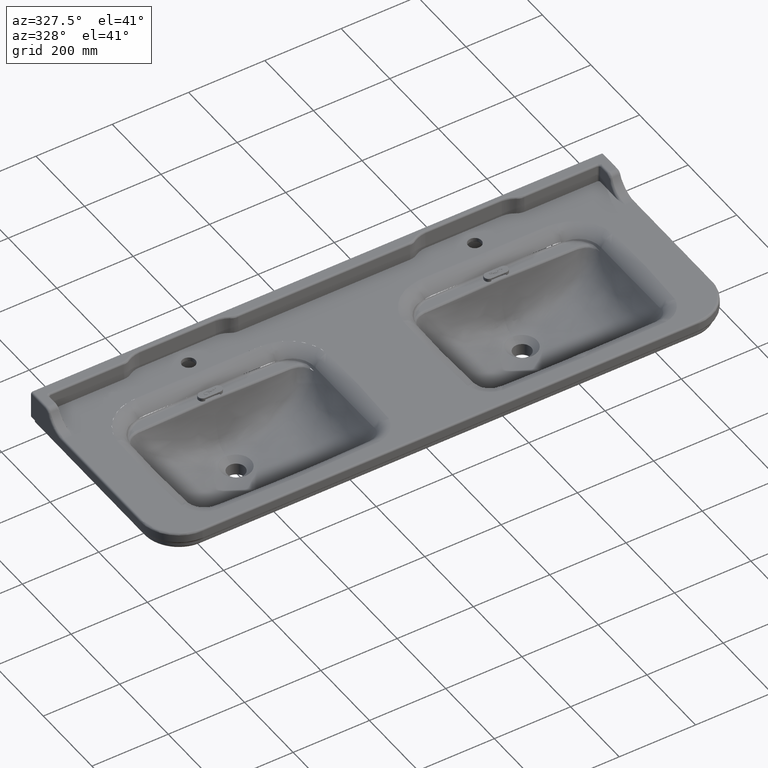
[diagram: clean part render]
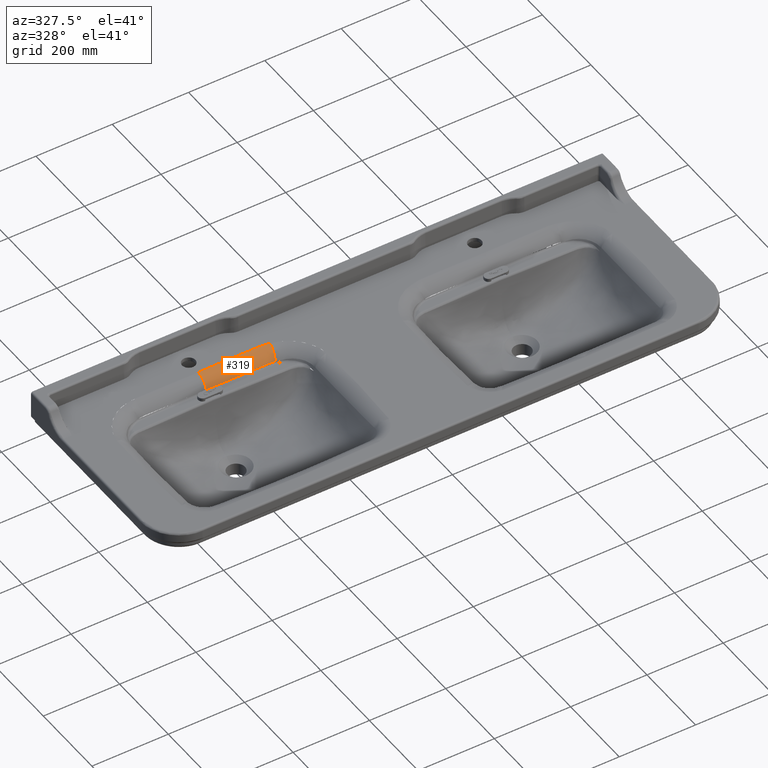
[diagram: same view with one face highlighted and labeled with its STEP entity id]
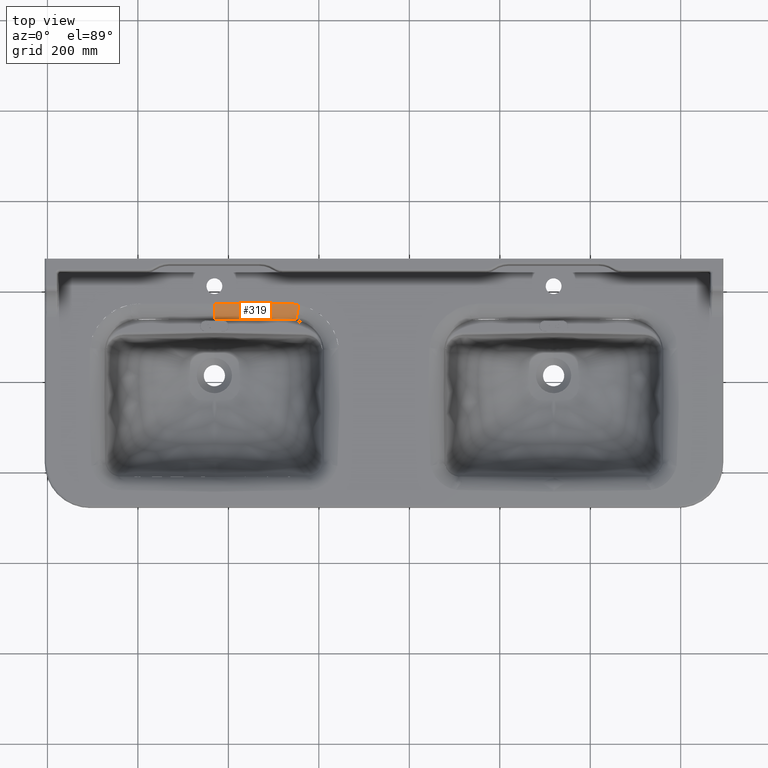
[diagram: same view with one face highlighted and labeled with its STEP entity id]
A machine part, auxiliary view. The second image highlights one B-rep face of the part: STEP entity #319.
A second angle (top view) of the same face is appended — the face is thin or edge-on in the first view.
In plain terms, the highlighted face is a freeform B-spline surface patch.
Its self-contained STEP definition (entity closure, byte-faithful):
#319=ADVANCED_FACE($,(#964),#8271,.T.);
#964=FACE_OUTER_BOUND($,#1613,.T.);
#1613=EDGE_LOOP($,(#3208,#3209,#3210,#3211));
#3208=ORIENTED_EDGE($,*,*,#6012,.T.);
#3209=ORIENTED_EDGE($,*,*,#6014,.T.);
#3210=ORIENTED_EDGE($,*,*,#6011,.T.);
#3211=ORIENTED_EDGE($,*,*,#6013,.T.);
#6011=EDGE_CURVE($,#7401,#6993,#9495,.T.);
#6012=EDGE_CURVE($,#6991,#7402,#8988,.T.);
#6013=EDGE_CURVE($,#6993,#6991,#9496,.T.);
#6014=EDGE_CURVE($,#7402,#7401,#9497,.T.);
#6991=VERTEX_POINT($,#247959);
#6993=VERTEX_POINT($,#247961);
#7401=VERTEX_POINT($,#248369);
#7402=VERTEX_POINT($,#248370);
#8271=(
BOUNDED_SURFACE()
B_SPLINE_SURFACE(3,2,((#142724,#142725,#142726),(#142727,#142728,#142729),
(#142730,#142731,#142732),(#142733,#142734,#142735),(#142736,#142737,#142738),
(#142739,#142740,#142741),(#142742,#142743,#142744),(#142745,#142746,#142747),
(#142748,#142749,#142750),(#142751,#142752,#142753),(#142754,#142755,#142756),
(#142757,#142758,#142759),(#142760,#142761,#142762),(#142763,#142764,#142765),
(#142766,#142767,#142768),(#142769,#142770,#142771),(#142772,#142773,#142774),
(#142775,#142776,#142777),(#142778,#142779,#142780),(#142781,#142782,#142783),
(#142784,#142785,#142786),(#142787,#142788,#142789),(#142790,#142791,#142792),
(#142793,#142794,#142795),(#142796,#142797,#142798),(#142799,#142800,#142801),
(#142802,#142803,#142804),(#142805,#142806,#142807),(#142808,#142809,#142810),
(#142811,#142812,#142813),(#142814,#142815,#142816),(#142817,#142818,#142819),
(#142820,#142821,#142822),(#142823,#142824,#142825),(#142826,#142827,#142828),
(#142829,#142830,#142831),(#142832,#142833,#142834),(#142835,#142836,#142837),
(#142838,#142839,#142840),(#142841,#142842,#142843),(#142844,#142845,#142846),
(#142847,#142848,#142849),(#142850,#142851,#142852),(#142853,#142854,#142855),
(#142856,#142857,#142858),(#142859,#142860,#142861),(#142862,#142863,#142864),
(#142865,#142866,#142867),(#142868,#142869,#142870),(#142871,#142872,#142873),
(#142874,#142875,#142876),(#142877,#142878,#142879)),.UNSPECIFIED.,.F.,.F.,
.F.)
B_SPLINE_SURFACE_WITH_KNOTS((4,2,2,2,2,2,2,2,2,2,2,2,2,2,2,2,2,2,2,2,2,2,
2,2,2,4),(3,3),(0.361759218,0.454869129498658,0.501986117063007,0.513765363954094,
0.519654987399638,0.52259979912241,0.524072204983796,0.524440306449142,0.524532331815479,
0.524578344498647,0.524601350840231,0.524612854011023,0.524618605596419,
0.524624357181815,0.524808407914489,0.525544610845182,0.528489422567953,
0.531434234290725,0.534379046013497,0.537323857736269,0.538060060666962,
0.538428162132308,0.538796263597655,0.540268669459041,0.543213481181812,
0.549103104627356),(0.041557294,1.),.UNSPECIFIED.)
GEOMETRIC_REPRESENTATION_ITEM()
RATIONAL_B_SPLINE_SURFACE(((0.979538770226055,0.753819031456368,1.),(0.979539853531856,
0.753832065339201,1.),(0.979540938035703,0.753845113636404,1.),(0.979542573191237,
0.753864787144669,1.),(0.979543122914151,0.753871401181114,1.),(0.97954381047025,
0.753879673568857,1.),(0.979543947999807,0.753881328267041,1.),(0.979544154322685,
0.7538838106577,1.),(0.979544223101805,0.753884638179344,1.),(0.979544326279496,
0.753885879570205,1.),(0.979544360672708,0.753886293374978,1.),(0.979544412264399,
0.753886914104643,1.),(0.979544429462011,0.753887121019133,1.),(0.979544450959534,
0.753887379668342,1.),(0.979544455259044,0.753887431398254,1.),(0.979544460633402,
0.753887496060279,1.),(0.97954446170829,0.753887508992892,1.),(0.979544463320613,
0.75388752839168,1.),(0.979544463858053,0.75388753485794,1.),(0.979544464664219,
0.753887544557389,1.),(0.979544464932934,0.753887547790454,1.),(0.979544465336023,
0.753887552640245,1.),(0.979544450051883,0.753887368747864,1.),(0.979544473381172,
0.753887649436128,1.),(0.979544636040357,0.753889606483481,1.),(0.97954485575644,
0.753892250015615,1.),(0.979544965641972,0.753893572112426,1.),(0.979548592771671,
0.753937212221653,1.),(0.979552138137032,0.753979868576527,1.),(0.979570005565516,
0.754194842011563,1.),(0.979584749425528,0.754372233975677,1.),(0.979660709433766,
0.755286153060952,1.),(0.979728534018128,0.756102190124887,1.),(0.979877835764551,
0.757898526363997,1.),(0.979959325110974,0.758878972136327,1.),(0.980135640802764,
0.761000328880453,1.),(0.980230467374203,0.762141242572279,1.),(0.980433158446307,
0.764579936873507,1.),(0.980541073643971,0.765878327448024,1.),(0.980683537720091,
0.767592395694619,1.),(0.980712426038544,0.767939967873556,1.),(0.980756348750129,
0.768468427589739,1.),(0.980771107710748,0.76864600123805,1.),(0.980800744484055,
0.769002578513104,1.),(0.980815532166823,0.769180497734327,1.),(0.980889317388899,
0.770068250701053,1.),(0.98094785536212,0.770772555139416,1.),(0.981122011021057,
0.772867923270674,1.),(0.981236170566461,0.774241443228482,1.),(0.981572911000245,
0.778292963447585,1.),(0.981789754658985,0.780901935758672,1.),(0.98199917997164,
0.783421653628833,1.)))
REPRESENTATION_ITEM($)
SURFACE()
);
#8988=(
BOUNDED_CURVE()
B_SPLINE_CURVE(2,(#20475,#20476,#20477),.UNSPECIFIED.,.F.,.F.)
B_SPLINE_CURVE_WITH_KNOTS((3,3),(0.,1.31811607165057),.UNSPECIFIED.)
CURVE()
GEOMETRIC_REPRESENTATION_ITEM()
RATIONAL_B_SPLINE_CURVE((1.,0.790569415046225,1.))
REPRESENTATION_ITEM($)
);
#9495=B_SPLINE_CURVE_WITH_KNOTS($,3,(#20463,#20464,#20465,#20466,#20467,
#20468,#20469,#20470,#20471,#20472,#20473,#20474),.UNSPECIFIED.,.F.,.F.,
(4,2,2,2,2,4),(2.31811607165057,2.56811607165057,2.81811607165057,3.06811607165057,
3.19311607165057,3.31811607165057),.UNSPECIFIED.);
#9496=B_SPLINE_CURVE_WITH_KNOTS($,3,(#20478,#20479,#20480,#20481,#20482,
#20483,#20484,#20485,#20486,#20487,#20488,#20489),.UNSPECIFIED.,.F.,.F.,
(4,1,1,2,2,2,4),(3.31811607165057,3.81811607165057,4.06811607165057,4.19311607165057,
4.22436607165057,4.25561607165057,4.31811607165057),.UNSPECIFIED.);
#9497=B_SPLINE_CURVE_WITH_KNOTS($,3,(#20490,#20491,#20492,#20493,#20494,
#20495,#20496,#20497,#20498,#20499,#20500),.UNSPECIFIED.,.F.,.F.,(4,2,2,
1,1,1,4),(1.31811607165057,1.44311607164999,1.47436607165001,1.50561607165003,
1.56811607165008,1.81811607165024,2.31811607165057),.UNSPECIFIED.);
#20463=CARTESIAN_POINT($,(-30.9148483423476,170.665895927924,204.999999999963));
#20464=CARTESIAN_POINT($,(-30.9148483423476,166.783858104924,204.999999999963));
#20465=CARTESIAN_POINT($,(-30.9148483423476,163.008854141924,204.371508822963));
#20466=CARTESIAN_POINT($,(-30.9148483423476,155.672076903924,201.862459081963));
#20467=CARTESIAN_POINT($,(-30.9148483423476,152.294643684924,200.041483586963));
#20468=CARTESIAN_POINT($,(-30.9148483423476,146.172126751924,195.299188062963));
#20469=CARTESIAN_POINT($,(-30.9148483423476,143.559148558924,192.476268550963));
#20470=CARTESIAN_POINT($,(-30.9148483423476,140.369054183924,187.630682928963));
#20471=CARTESIAN_POINT($,(-30.9148483423476,139.442402627924,185.929768494963));
#20472=CARTESIAN_POINT($,(-30.9148483423476,137.891405945924,182.429676769963));
#20473=CARTESIAN_POINT($,(-30.9148483423476,137.260205139924,180.620315905963));
#20474=CARTESIAN_POINT($,(-30.9148483423476,136.777291648924,178.749999999963));
#20475=CARTESIAN_POINT($,(149.169515619653,134.977591769049,178.749999999954));
#20476=CARTESIAN_POINT($,(150.541674492329,141.614961732534,204.999999999766));
#20477=CARTESIAN_POINT($,(156.030309983669,168.164441585017,204.999999999797));
#20478=CARTESIAN_POINT($,(-30.9148483423476,136.777291648924,178.749999999963));
#20479=CARTESIAN_POINT($,(-0.882849974347556,136.777238409945,178.749999999962));
#20480=CARTESIAN_POINT($,(44.1651475786525,136.777158582976,178.749999999959));
#20481=CARTESIAN_POINT($,(96.7211447226526,136.777065508013,178.749999999957));
#20482=CARTESIAN_POINT($,(119.245143498653,136.777025631028,178.749999999955));
#20483=CARTESIAN_POINT($,(128.630142988653,136.777009018035,178.749999999955));
#20484=CARTESIAN_POINT($,(130.507705610653,136.786413748036,178.749999999955));
#20485=CARTESIAN_POINT($,(134.260428645653,136.765061205039,178.749999999955));
#20486=CARTESIAN_POINT($,(136.132747055653,136.68678907104,178.749999999955));
#20487=CARTESIAN_POINT($,(141.738481417653,136.264373293044,178.749999999954));
#20488=CARTESIAN_POINT($,(145.461367667653,135.744185788046,178.749999999954));
#20489=CARTESIAN_POINT($,(149.169515619653,134.977591769049,178.749999999954));
#20490=CARTESIAN_POINT($,(156.030309983669,168.164441585017,204.999999999797));
#20491=CARTESIAN_POINT($,(148.39376486669,169.743162252936,204.999999999955));
#20492=CARTESIAN_POINT($,(140.677599995726,170.596376825928,204.999999999956));
#20493=CARTESIAN_POINT($,(130.92803454776,170.678001238927,204.999999999956));
#20494=CARTESIAN_POINT($,(128.978119432759,170.665612680927,204.999999999956));
#20495=CARTESIAN_POINT($,(125.078290949756,170.665619584927,204.999999999956));
#20496=CARTESIAN_POINT($,(119.228548226752,170.665629939927,204.999999999957));
#20497=CARTESIAN_POINT($,(97.7794915737381,170.665667913926,204.999999999958));
#20498=CARTESIAN_POINT($,(47.0817213037044,170.665757694926,204.99999999996));
#20499=CARTESIAN_POINT($,(0.283779515673167,170.665840620925,204.999999999962));
#20500=CARTESIAN_POINT($,(-30.9148483423476,170.665895927924,204.999999999963));
#142724=CARTESIAN_POINT($,(-30.9149092788713,136.118082980928,175.607906967581));
#142725=CARTESIAN_POINT($,(-30.9149008206754,140.889097678845,204.999999999515));
#142726=CARTESIAN_POINT($,(-30.9148480342705,170.66589592823,204.999999999963));
#142727=CARTESIAN_POINT($,(0.121693581748511,136.118248614783,175.609266309272));
#142728=CARTESIAN_POINT($,(0.121199734197179,140.890229604105,204.999999987516));
#142729=CARTESIAN_POINT($,(0.121789132966825,170.665840908007,204.999999999963));
#142730=CARTESIAN_POINT($,(31.1583306855878,136.118414602827,175.610627207045));
#142731=CARTESIAN_POINT($,(31.1578357213375,140.891362853487,205.000000005843));
#142732=CARTESIAN_POINT($,(31.1584262973452,170.665785910258,204.999999999963));
#142733=CARTESIAN_POINT($,(77.9006559940503,136.118665131559,175.612679114973));
#142734=CARTESIAN_POINT($,(77.9005355405574,140.893071625812,204.999999996988));
#142735=CARTESIAN_POINT($,(77.9007259866524,170.665703117924,204.999999999963));
#142736=CARTESIAN_POINT($,(93.6063185126455,136.118749401517,175.613368965041));
#142737=CARTESIAN_POINT($,(93.6061979137559,140.893646109306,205.000000004922));
#142738=CARTESIAN_POINT($,(93.6063885066524,170.665675304924,204.999999999963));
#142739=CARTESIAN_POINT($,(113.238404944961,136.118854854276,175.614231777254));
#142740=CARTESIAN_POINT($,(113.238405334133,140.894364659379,204.999999998972));
#142741=CARTESIAN_POINT($,(113.238466659652,170.665640544924,204.999999999963));
#142742=CARTESIAN_POINT($,(117.164820576942,136.118875950389,175.614404362933));
#142743=CARTESIAN_POINT($,(117.164820964132,140.894508388793,204.99999999798));
#142744=CARTESIAN_POINT($,(117.164882289652,170.665633593924,204.999999999963));
#142745=CARTESIAN_POINT($,(123.05444443902,136.118907604296,175.614663283204));
#142746=CARTESIAN_POINT($,(123.054450876716,140.894724014559,205.000000000955));
#142747=CARTESIAN_POINT($,(123.054505734652,170.665623167924,204.999999999963));
#142748=CARTESIAN_POINT($,(125.01765225502,136.118918155975,175.614749594921));
#142749=CARTESIAN_POINT($,(125.017658692715,140.894795894091,205.000000000955));
#142750=CARTESIAN_POINT($,(125.017713550652,170.665619691924,204.999999999963));
#142751=CARTESIAN_POINT($,(127.962464083535,136.118933987082,175.614879073418));
#142752=CARTESIAN_POINT($,(127.962472033346,140.894903725268,204.999999999963));
#142753=CARTESIAN_POINT($,(127.962525272652,170.665614478924,204.999999999963));
#142754=CARTESIAN_POINT($,(128.944067991535,136.118939264449,175.614922234243));
#142755=CARTESIAN_POINT($,(128.944075941346,140.89493966899,204.999999999963));
#142756=CARTESIAN_POINT($,(128.944129180652,170.665612740924,204.999999999963));
#142757=CARTESIAN_POINT($,(130.416473879173,136.118947181029,175.614986977963));
#142758=CARTESIAN_POINT($,(130.416482207996,140.894993588045,204.999999999963));
#142759=CARTESIAN_POINT($,(130.416535041652,170.665610134924,204.999999999963));
#142760=CARTESIAN_POINT($,(130.907275834163,136.118949820213,175.615008558874));
#142761=CARTESIAN_POINT($,(130.907284161996,140.895011560398,204.999999999963));
#142762=CARTESIAN_POINT($,(130.907336995652,170.665609265924,204.999999999963));
#142763=CARTESIAN_POINT($,(131.520778284304,136.118953119214,175.615035536501));
#142764=CARTESIAN_POINT($,(131.520786730947,140.895034027824,204.999999999963));
#142765=CARTESIAN_POINT($,(131.520839437652,170.665608179924,204.999999999963));
#142766=CARTESIAN_POINT($,(131.643478773304,136.11895377901,175.615040932225));
#142767=CARTESIAN_POINT($,(131.643487219947,140.895038520914,204.999999999963));
#142768=CARTESIAN_POINT($,(131.643539926652,170.665607962924,204.999999999963));
#142769=CARTESIAN_POINT($,(131.79685438437,136.118954603762,175.615047676631));
#142770=CARTESIAN_POINT($,(131.796862837881,140.895044138014,204.999999999963));
#142771=CARTESIAN_POINT($,(131.796915536652,170.665607690924,204.999999999963));
#142772=CARTESIAN_POINT($,(131.82752950637,136.118954768709,175.615049025315));
#142773=CARTESIAN_POINT($,(131.827537959889,140.89504526104,204.999999999963));
#142774=CARTESIAN_POINT($,(131.827590659652,170.665607636924,204.999999999963));
#142775=CARTESIAN_POINT($,(131.873542189379,136.118955015638,175.615051048835));
#142776=CARTESIAN_POINT($,(131.873550643881,140.895046946076,204.999999999963));
#142777=CARTESIAN_POINT($,(131.873603342652,170.665607555924,204.999999999963));
#142778=CARTESIAN_POINT($,(131.888879750379,136.118955098612,175.615051723672));
#142779=CARTESIAN_POINT($,(131.888888204881,140.895047508085,204.999999999963));
#142780=CARTESIAN_POINT($,(131.888940903652,170.665607528924,204.999999999963));
#142781=CARTESIAN_POINT($,(131.911886092379,136.118955222076,175.615052735432));
#142782=CARTESIAN_POINT($,(131.911894546873,140.895048350599,204.999999999963));
#142783=CARTESIAN_POINT($,(131.911947244652,170.665607487924,204.999999999963));
#142784=CARTESIAN_POINT($,(131.919554872379,136.118955263558,175.615053072355));
#142785=CARTESIAN_POINT($,(131.919563326881,140.895048631104,204.999999999963));
#142786=CARTESIAN_POINT($,(131.919616025652,170.665607473924,204.999999999963));
#142787=CARTESIAN_POINT($,(131.931058043379,136.118955325295,175.615053578235));
#142788=CARTESIAN_POINT($,(131.931066497881,140.895049052861,204.999999999963));
#142789=CARTESIAN_POINT($,(131.931119196652,170.665607453924,204.999999999963));
#142790=CARTESIAN_POINT($,(131.934975599304,136.118952200816,175.615034397525));
#142791=CARTESIAN_POINT($,(131.934972554996,140.895032300626,204.999999999963));
#142792=CARTESIAN_POINT($,(131.934953586652,170.665607446924,204.999999999963));
#142793=CARTESIAN_POINT($,(131.940602435917,136.118956948772,175.615063673975));
#142794=CARTESIAN_POINT($,(131.940616639819,140.895057850235,204.999999999963));
#142795=CARTESIAN_POINT($,(131.940705171652,170.665607436924,204.999999999963));
#142796=CARTESIAN_POINT($,(131.94164269685,136.11899010945,175.615267798118));
#142797=CARTESIAN_POINT($,(131.941778136962,140.895236042827,204.999999999963));
#142798=CARTESIAN_POINT($,(131.942622366652,170.665607409924,204.999999999963));
#142799=CARTESIAN_POINT($,(131.944293213124,136.119034807229,175.615543525655));
#142800=CARTESIAN_POINT($,(131.944592343389,140.895476639109,204.999999999963));
#142801=CARTESIAN_POINT($,(131.946456757652,170.665607235924,204.999999999963));
#142802=CARTESIAN_POINT($,(131.945618479297,136.119057128347,175.615681424201));
#142803=CARTESIAN_POINT($,(131.945999457983,140.895596930789,204.999999999963));
#142804=CARTESIAN_POINT($,(131.948373952652,170.665607098924,204.999999999963));
#142805=CARTESIAN_POINT($,(131.989352361108,136.11979281931,175.620233203793));
#142806=CARTESIAN_POINT($,(131.992432111813,140.899566136661,204.999999999963));
#142807=CARTESIAN_POINT($,(132.011641391652,170.665600968924,204.999999999963));
#142808=CARTESIAN_POINT($,(132.031769085623,136.120478005784,175.62468272618));
#142809=CARTESIAN_POINT($,(132.037472310585,140.903408861677,204.999999999963));
#142810=CARTESIAN_POINT($,(132.072991631652,170.665544567924,204.999999999963));
#142811=CARTESIAN_POINT($,(132.243891239811,136.123763024146,175.647108306161));
#142812=CARTESIAN_POINT($,(132.262697383933,140.922586932841,204.999999999963));
#142813=CARTESIAN_POINT($,(132.379742814652,170.665010459924,204.999999999963));
#142814=CARTESIAN_POINT($,(132.41372135414,136.125940274115,175.665619184126));
#142815=CARTESIAN_POINT($,(132.443105271655,140.937828531293,204.999999999963));
#142816=CARTESIAN_POINT($,(132.625143704652,170.663776437924,204.999999999963));
#142817=CARTESIAN_POINT($,(133.26355152029,136.134584624476,175.761014815777));
#142818=CARTESIAN_POINT($,(133.3455933539,141.013449418592,204.999999999963));
#142819=CARTESIAN_POINT($,(133.852147870652,170.653584705924,204.999999999963));
#142820=CARTESIAN_POINT($,(133.944455187772,136.134312385032,175.846294331217));
#142821=CARTESIAN_POINT($,(134.070079547219,141.072162886868,204.999999999963));
#142822=CARTESIAN_POINT($,(134.831899192652,170.632570571924,204.999999999963));
#142823=CARTESIAN_POINT($,(135.309173684166,136.119909707017,176.034355917825));
#142824=CARTESIAN_POINT($,(135.525051725562,141.185494446254,204.999999999963));
#142825=CARTESIAN_POINT($,(136.786623958652,170.565523073924,204.999999999963));
#142826=CARTESIAN_POINT($,(135.993103154933,136.105782722067,176.137148061151));
#142827=CARTESIAN_POINT($,(136.255349518509,141.240108994627,204.999999998972));
#142828=CARTESIAN_POINT($,(137.761791779652,170.519488105924,204.999999999963));
#142829=CARTESIAN_POINT($,(137.365833788046,136.064220417136,176.360016511026));
#142830=CARTESIAN_POINT($,(137.72435961584,141.344817732086,205.000000000955));
#142831=CARTESIAN_POINT($,(139.707868069652,170.403135600924,204.999999999963));
#142832=CARTESIAN_POINT($,(138.054614974846,136.036787645601,176.480087011057));
#142833=CARTESIAN_POINT($,(138.462738677347,141.394901793493,204.999999999963));
#142834=CARTESIAN_POINT($,(140.678776510652,170.332817889924,204.999999999963));
#142835=CARTESIAN_POINT($,(139.438760504493,135.969188420545,176.73733738164));
#142836=CARTESIAN_POINT($,(139.949894900748,141.490080899782,204.999999999963));
#142837=CARTESIAN_POINT($,(142.616472726652,170.168690536924,204.999999999963));
#142838=CARTESIAN_POINT($,(140.134122338916,135.929038167945,176.87457552973));
#142839=CARTESIAN_POINT($,(140.69835792006,141.535225370525,204.999999999963));
#142840=CARTESIAN_POINT($,(143.583260611652,170.074881517924,204.999999999963));
#142841=CARTESIAN_POINT($,(141.008487595968,135.87117065963,177.056235474404));
#142842=CARTESIAN_POINT($,(141.642704273341,141.587880313899,204.999999999963));
#142843=CARTESIAN_POINT($,(144.789262474652,169.943464687924,204.999999999963));
#142844=CARTESIAN_POINT($,(141.183602922504,135.859218595916,177.093090505838));
#142845=CARTESIAN_POINT($,(141.831686645235,141.59822296012,204.999999999963));
#142846=CARTESIAN_POINT($,(145.030338718652,169.916473660924,204.999999999963));
#142847=CARTESIAN_POINT($,(141.446687042358,135.840728293363,177.149162301826));
#142848=CARTESIAN_POINT($,(142.115803043945,141.613473718503,204.999999999963));
#142849=CARTESIAN_POINT($,(145.391768703652,169.874935970924,204.999999999963));
#142850=CARTESIAN_POINT($,(141.534631228922,135.834455317682,177.168009146382));
#142851=CARTESIAN_POINT($,(142.210735901055,141.61851533132,204.999999999963));
#142852=CARTESIAN_POINT($,(145.512214707652,169.860915293924,204.999999999963));
#142853=CARTESIAN_POINT($,(141.709622840027,135.821823249881,177.205866595197));
#142854=CARTESIAN_POINT($,(142.39992960376,141.628525190459,204.999999999963));
#142855=CARTESIAN_POINT($,(145.753045232652,169.832523420924,204.999999999963));
#142856=CARTESIAN_POINT($,(141.797091702697,135.815389968473,177.224762049134));
#142857=CARTESIAN_POINT($,(142.494531054524,141.633354828046,204.999999999963));
#142858=CARTESIAN_POINT($,(145.873429608652,169.818151406924,204.999999999963));
#142859=CARTESIAN_POINT($,(142.234282275038,135.782637799516,177.319068735031));
#142860=CARTESIAN_POINT($,(142.967232212378,141.656609412577,204.999999999963));
#142861=CARTESIAN_POINT($,(146.475196980652,169.745410458924,204.999999999963));
#142862=CARTESIAN_POINT($,(142.583622233714,135.754556028662,177.393985416431));
#142863=CARTESIAN_POINT($,(143.345729789019,141.672424772896,204.999999999963));
#142864=CARTESIAN_POINT($,(146.956116450652,169.684398971924,204.999999999963));
#142865=CARTESIAN_POINT($,(143.630320749265,135.664639711145,177.617126934272));
#142866=CARTESIAN_POINT($,(144.480347220814,141.71139085242,204.999999999963));
#142867=CARTESIAN_POINT($,(148.397388007652,169.492887941924,204.999999999963));
#142868=CARTESIAN_POINT($,(144.326487250283,135.59712661794,177.763771308542));
#142869=CARTESIAN_POINT($,(145.237713744838,141.726195396705,204.999999999963));
#142870=CARTESIAN_POINT($,(149.356253411652,169.353912814924,204.999999999963));
#142871=CARTESIAN_POINT($,(146.40990493602,135.371570593139,178.197285120374));
#142872=CARTESIAN_POINT($,(147.506092969113,141.736651866527,204.999999999963));
#142873=CARTESIAN_POINT($,(152.226868047652,168.902886448924,204.999999999963));
#142874=CARTESIAN_POINT($,(147.792594400131,135.190490311288,178.477846530957));
#142875=CARTESIAN_POINT($,(149.021817129577,141.698856291017,205.000000000956));
#142876=CARTESIAN_POINT($,(154.132639005652,168.556751503924,204.999999999963));
#142877=CARTESIAN_POINT($,(149.169515619516,134.977591767689,178.749999992661));
#142878=CARTESIAN_POINT($,(150.54167449083,141.6149617258,204.999999999963));
#142879=CARTESIAN_POINT($,(156.030309983652,168.164441584924,204.999999999963));
#247959=CARTESIAN_POINT($,(149.169515619653,134.977591769049,178.749999999954));
#247961=CARTESIAN_POINT($,(-30.9148483423476,136.777291648924,178.749999999963));
#248369=CARTESIAN_POINT($,(-30.9148483423476,170.665895927924,204.999999999963));
#248370=CARTESIAN_POINT($,(156.030309983669,168.164441585017,204.999999999797));